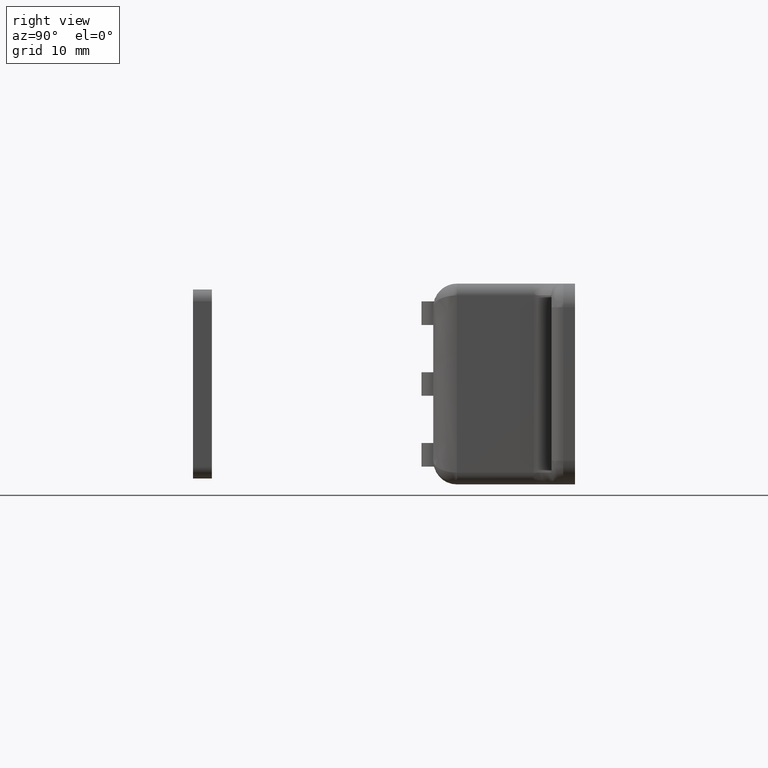
[diagram: clean part render]
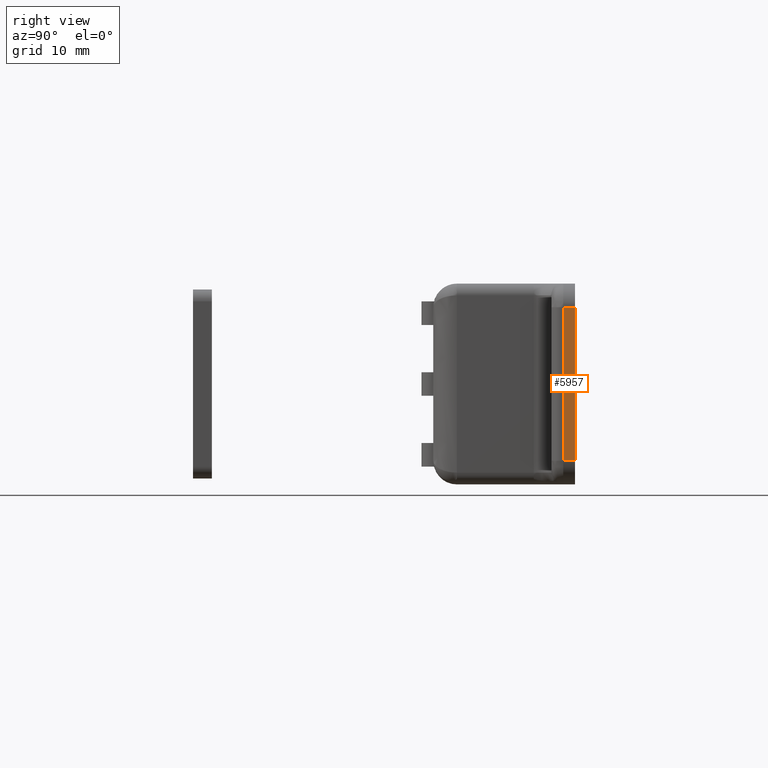
[diagram: same view with one face highlighted and labeled with its STEP entity id]
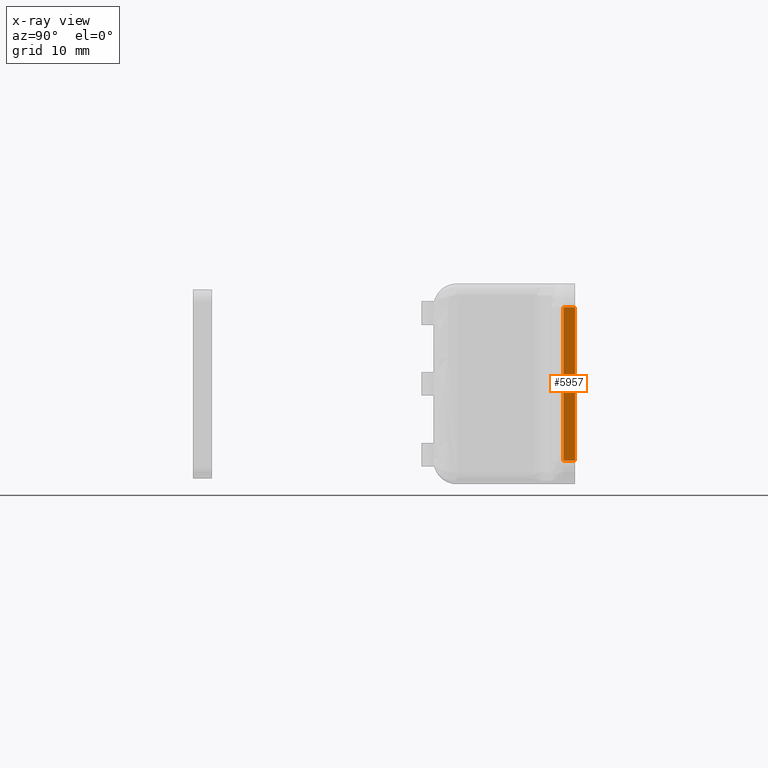
[diagram: x-ray of the same camera — body ghosted, the highlighted face saturated]
A machine part, right view. The second image highlights one B-rep face of the part: STEP entity #5957.
The next image is the same camera in x-ray: the body ghosted, the highlighted face saturated — about 0% of this face is hidden behind the body in this view.
In plain terms, the highlighted face is a freeform B-spline surface patch.
Its self-contained STEP definition (entity closure, byte-faithful):
#4103=CARTESIAN_POINT('',(25.0,-1.0,-6.500000000000000));
#4104=VERTEX_POINT('',#4103);
#4163=CARTESIAN_POINT('',(25.0,-1.0,6.500000000000000));
#4164=VERTEX_POINT('',#4163);
#4186=CARTESIAN_POINT('',(25.0,-1.0,6.500000000000000));
#4187=CARTESIAN_POINT('',(25.0,-1.0,-6.500000000000000));
#4188=QUASI_UNIFORM_CURVE('',1,(#4186,#4187),.UNSPECIFIED.,.F.,.U.);
#4189=EDGE_CURVE('',#4164,#4104,#4188,.T.);
#5662=CARTESIAN_POINT('',(25.0,0.0,6.500000000000000));
#5663=VERTEX_POINT('',#5662);
#5664=CARTESIAN_POINT('',(25.0,0.0,6.500000000000000));
#5665=CARTESIAN_POINT('',(25.0,-1.0,6.500000000000000));
#5666=QUASI_UNIFORM_CURVE('',1,(#5664,#5665),.UNSPECIFIED.,.F.,.U.);
#5667=EDGE_CURVE('',#5663,#4164,#5666,.T.);
#5699=CARTESIAN_POINT('',(25.0,0.0,-6.500000000000000));
#5700=VERTEX_POINT('',#5699);
#5701=CARTESIAN_POINT('',(25.0,-1.0,-6.500000000000000));
#5702=CARTESIAN_POINT('',(25.0,0.0,-6.500000000000000));
#5703=QUASI_UNIFORM_CURVE('',1,(#5701,#5702),.UNSPECIFIED.,.F.,.U.);
#5704=EDGE_CURVE('',#4104,#5700,#5703,.T.);
#5841=CARTESIAN_POINT('',(25.0,0.0,-6.500000000000000));
#5842=CARTESIAN_POINT('',(25.0,0.0,6.500000000000000));
#5843=QUASI_UNIFORM_CURVE('',1,(#5841,#5842),.UNSPECIFIED.,.F.,.U.);
#5844=EDGE_CURVE('',#5700,#5663,#5843,.T.);
#5946=CARTESIAN_POINT('',(25.0,-1.049949998061806,-7.149349974803478));
#5947=CARTESIAN_POINT('',(25.0,-1.049949998061806,7.149350323490650));
#5948=CARTESIAN_POINT('',(25.0,0.049950024883896,-7.149349974803478));
#5949=CARTESIAN_POINT('',(25.0,0.049950024883896,7.149350323490651));
#5950=B_SPLINE_SURFACE_WITH_KNOTS('',1,1,((#5946,#5948),(#5947,#5949)),.UNSPECIFIED.,.F.,.F.,.U.,(2,2),(2,2),(0.0,14.298700298294129),(0.041708334948495,0.958291687403247),.UNSPECIFIED.);
#5951=ORIENTED_EDGE('',*,*,#5667,.T.);
#5952=ORIENTED_EDGE('',*,*,#4189,.T.);
#5953=ORIENTED_EDGE('',*,*,#5704,.T.);
#5954=ORIENTED_EDGE('',*,*,#5844,.T.);
#5955=EDGE_LOOP('',(#5951,#5952,#5953,#5954));
#5956=FACE_OUTER_BOUND('',#5955,.T.);
#5957=ADVANCED_FACE('',(#5956),#5950,.F.);